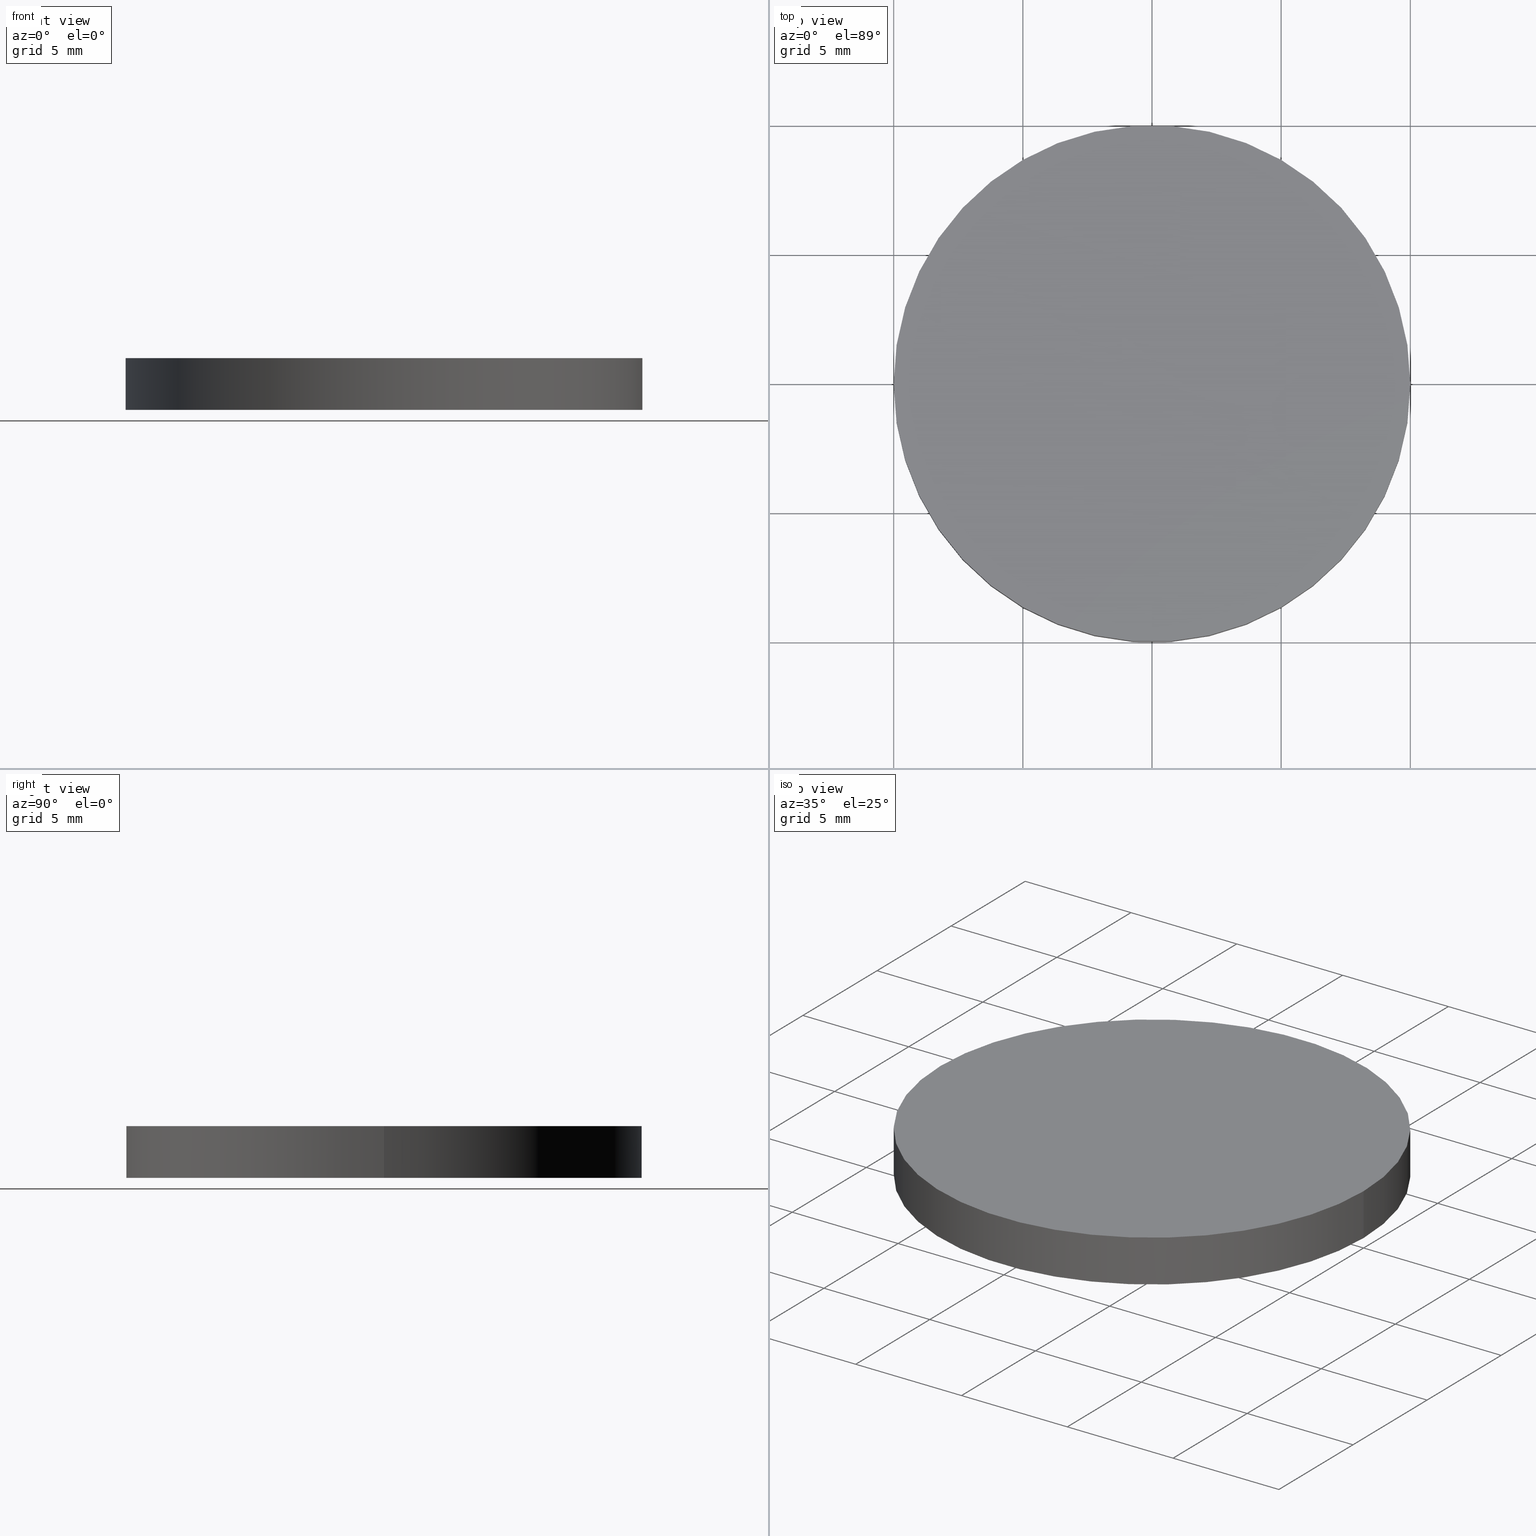
[diagram: canonical four-view strip — front | top / right | iso, engineering-drawing reading convention]
A machine part, canonical four-view strip (front | top / right | iso — engineering-drawing reading convention). The complete STEP part file that produces these views, byte-faithful:
ISO-10303-21;
HEADER;
FILE_DESCRIPTION (( 'STEP AP214' ),
    '1' );
FILE_NAME ('190124.STEP',
    '2019-07-17T03:29:39',
    ( 'user' ),
    ( '΢���й�' ),
    'SwSTEP 2.0',
    'SolidWorks 2016',
    '' );
FILE_SCHEMA (( 'AUTOMOTIVE_DESIGN' ));
ENDSEC;

DATA;
#1 = DIRECTION ( 'NONE',  ( 1.000000000000000000, 0.0000000000000000000, 0.0000000000000000000 ) ) ;
#2 = ORIENTED_EDGE ( 'NONE', *, *, #134, .T. ) ;
#3 = DIRECTION ( 'NONE',  ( 0.0000000000000000000, 0.0000000000000000000, 1.000000000000000000 ) ) ;
#4 = SURFACE_STYLE_FILL_AREA ( #89 ) ;
#5 = CARTESIAN_POINT ( 'NONE',  ( 0.0000000000000000000, 0.0000000000000000000, 2.000000000000000000 ) ) ;
#6 = COLOUR_RGB ( '',1.000000000000000000, 1.000000000000000000, 1.000000000000000000 ) ;
#7 = CIRCLE ( 'NONE', #31, 10.00000000000000000 ) ;
#8 = CARTESIAN_POINT ( 'NONE',  ( 10.00000000000000000, 1.224646799147353300E-015, 0.0000000000000000000 ) ) ;
#9 = CYLINDRICAL_SURFACE ( 'NONE', #99, 10.00000000000000000 ) ;
#10 =( GEOMETRIC_REPRESENTATION_CONTEXT ( 3 ) GLOBAL_UNCERTAINTY_ASSIGNED_CONTEXT ( ( #73 ) ) GLOBAL_UNIT_ASSIGNED_CONTEXT ( ( #116, #119, #120 ) ) REPRESENTATION_CONTEXT ( 'NONE', 'WORKASPACE' ) );
#11 = LINE ( 'NONE', #81, #19 ) ;
#12 = ORIENTED_EDGE ( 'NONE', *, *, #51, .T. ) ;
#13 = DIRECTION ( 'NONE',  ( -1.000000000000000000, 0.0000000000000000000, 0.0000000000000000000 ) ) ;
#14 =( NAMED_UNIT ( * ) PLANE_ANGLE_UNIT ( ) SI_UNIT ( $, .RADIAN. ) );
#15 = AXIS2_PLACEMENT_3D ( 'NONE', #33, #39, #40 ) ;
#16 = FACE_OUTER_BOUND ( 'NONE', #79, .T. ) ;
#17 = VERTEX_POINT ( 'NONE', #77 ) ;
#18 = AXIS2_PLACEMENT_3D ( 'NONE', #63, #106, #124 ) ;
#19 = VECTOR ( 'NONE', #122, 1000.000000000000000 ) ;
#20 = DIRECTION ( 'NONE',  ( 0.0000000000000000000, 0.0000000000000000000, 1.000000000000000000 ) ) ;
#21 = CARTESIAN_POINT ( 'NONE',  ( -10.00000000000000000, 0.0000000000000000000, 2.000000000000000000 ) ) ;
#22 = ORIENTED_EDGE ( 'NONE', *, *, #101, .T. ) ;
#23 =( GEOMETRIC_REPRESENTATION_CONTEXT ( 3 ) GLOBAL_UNCERTAINTY_ASSIGNED_CONTEXT ( ( #37 ) ) GLOBAL_UNIT_ASSIGNED_CONTEXT ( ( #97, #107, #108 ) ) REPRESENTATION_CONTEXT ( 'NONE', 'WORKASPACE' ) );
#24 = CIRCLE ( 'NONE', #131, 10.00000000000000000 ) ;
#25 = DIRECTION ( 'NONE',  ( 0.0000000000000000000, 0.0000000000000000000, 1.000000000000000000 ) ) ;
#26 = STYLED_ITEM ( 'NONE', ( #136 ), #132 ) ;
#27 = DIRECTION ( 'NONE',  ( 1.000000000000000000, 0.0000000000000000000, 0.0000000000000000000 ) ) ;
#28 = CARTESIAN_POINT ( 'NONE',  ( 10.00000000000000000, 1.224646799147353300E-015, 2.000000000000000000 ) ) ;
#29 = ADVANCED_FACE ( 'NONE', ( #117 ), #9, .T. ) ;
#30 = MANIFOLD_SOLID_BREP ( '͹̨-����1', #75 ) ;
#31 = AXIS2_PLACEMENT_3D ( 'NONE', #45, #25, #27 ) ;
#32 = CARTESIAN_POINT ( 'NONE',  ( 0.0000000000000000000, 0.0000000000000000000, 2.000000000000000000 ) ) ;
#33 = CARTESIAN_POINT ( 'NONE',  ( 0.0000000000000000000, 0.0000000000000000000, 0.0000000000000000000 ) ) ;
#34 = PRODUCT_CONTEXT ( 'NONE', #110, 'mechanical' ) ;
#35 = ORIENTED_EDGE ( 'NONE', *, *, #51, .F. ) ;
#36 = AXIS2_PLACEMENT_3D ( 'NONE', #87, #60, #93 ) ;
#37 = UNCERTAINTY_MEASURE_WITH_UNIT (LENGTH_MEASURE( 1.000000000000000100E-005 ), #97, 'distance_accuracy_value', 'NONE');
#38 = VECTOR ( 'NONE', #74, 1000.000000000000000 ) ;
#39 = DIRECTION ( 'NONE',  ( 0.0000000000000000000, 0.0000000000000000000, 1.000000000000000000 ) ) ;
#40 = DIRECTION ( 'NONE',  ( 1.000000000000000000, 0.0000000000000000000, 0.0000000000000000000 ) ) ;
#41 = ORIENTED_EDGE ( 'NONE', *, *, #101, .F. ) ;
#42 = EDGE_CURVE ( 'NONE', #102, #17, #11, .T. ) ;
#43 = PRODUCT_DEFINITION_CONTEXT ( 'detailed design', #125, 'design' ) ;
#44 = EDGE_CURVE ( 'NONE', #102, #109, #7, .T. ) ;
#45 = CARTESIAN_POINT ( 'NONE',  ( 0.0000000000000000000, 0.0000000000000000000, 2.000000000000000000 ) ) ;
#46 = VERTEX_POINT ( 'NONE', #8 ) ;
#47 = PRODUCT_DEFINITION_SHAPE ( 'NONE', 'NONE',  #52 ) ;
#48 = CARTESIAN_POINT ( 'NONE',  ( 0.0000000000000000000, 0.0000000000000000000, 0.0000000000000000000 ) ) ;
#49 = CIRCLE ( 'NONE', #15, 10.00000000000000000 ) ;
#50 = DIRECTION ( 'NONE',  ( 0.0000000000000000000, 0.0000000000000000000, 1.000000000000000000 ) ) ;
#51 = EDGE_CURVE ( 'NONE', #46, #17, #49, .T. ) ;
#52 = PRODUCT_DEFINITION ( 'δ֪', '', #62, #43 ) ;
#53 = FACE_OUTER_BOUND ( 'NONE', #90, .T. ) ;
#54 = MECHANICAL_DESIGN_GEOMETRIC_PRESENTATION_REPRESENTATION (  '', ( #78 ), #23 ) ;
#55 = DIRECTION ( 'NONE',  ( 1.000000000000000000, 0.0000000000000000000, -0.0000000000000000000 ) ) ;
#56 = PLANE ( 'NONE',  #18 ) ;
#57 = PRESENTATION_LAYER_ASSIGNMENT (  '', '', ( #26 ) ) ;
#58 = SURFACE_STYLE_USAGE ( .BOTH. , #69 ) ;
#59 = ORIENTED_EDGE ( 'NONE', *, *, #123, .F. ) ;
#60 = DIRECTION ( 'NONE',  ( -0.0000000000000000000, -0.0000000000000000000, -1.000000000000000000 ) ) ;
#61 = UNCERTAINTY_MEASURE_WITH_UNIT (LENGTH_MEASURE( 1.000000000000000100E-005 ), #88, 'distance_accuracy_value', 'NONE');
#62 = PRODUCT_DEFINITION_FORMATION_WITH_SPECIFIED_SOURCE ( '�κ�', '', #103, .NOT_KNOWN. ) ;
#63 = CARTESIAN_POINT ( 'NONE',  ( 0.0000000000000000000, 0.0000000000000000000, 0.0000000000000000000 ) ) ;
#64 = EDGE_LOOP ( 'NONE', ( #41, #2, #12, #133 ) ) ;
#65 = PRESENTATION_LAYER_ASSIGNMENT (  '', '', ( #78 ) ) ;
#66 = FACE_OUTER_BOUND ( 'NONE', #138, .T. ) ;
#67 = MECHANICAL_DESIGN_GEOMETRIC_PRESENTATION_REPRESENTATION (  '', ( #26 ), #76 ) ;
#68 = ORIENTED_EDGE ( 'NONE', *, *, #42, .T. ) ;
#69 = SURFACE_SIDE_STYLE ('',( #4 ) ) ;
#70 = PRODUCT_RELATED_PRODUCT_CATEGORY ( 'part', '', ( #103 ) ) ;
#71 = SURFACE_SIDE_STYLE ('',( #121 ) ) ;
#72 = CARTESIAN_POINT ( 'NONE',  ( 10.00000000000000000, 1.224646799147353300E-015, 2.000000000000000000 ) ) ;
#73 = UNCERTAINTY_MEASURE_WITH_UNIT (LENGTH_MEASURE( 1.000000000000000100E-005 ), #116, 'distance_accuracy_value', 'NONE');
#74 = DIRECTION ( 'NONE',  ( -0.0000000000000000000, -0.0000000000000000000, -1.000000000000000000 ) ) ;
#75 = CLOSED_SHELL ( 'NONE', ( #29, #135, #105, #127 ) ) ;
#76 =( GEOMETRIC_REPRESENTATION_CONTEXT ( 3 ) GLOBAL_UNCERTAINTY_ASSIGNED_CONTEXT ( ( #61 ) ) GLOBAL_UNIT_ASSIGNED_CONTEXT ( ( #88, #14, #139 ) ) REPRESENTATION_CONTEXT ( 'NONE', 'WORKASPACE' ) );
#77 = CARTESIAN_POINT ( 'NONE',  ( -10.00000000000000000, 0.0000000000000000000, 0.0000000000000000000 ) ) ;
#78 = STYLED_ITEM ( 'NONE', ( #140 ), #30 ) ;
#79 = EDGE_LOOP ( 'NONE', ( #85, #22 ) ) ;
#80 = DIRECTION ( 'NONE',  ( -0.0000000000000000000, -0.0000000000000000000, -1.000000000000000000 ) ) ;
#81 = CARTESIAN_POINT ( 'NONE',  ( -10.00000000000000000, 0.0000000000000000000, 2.000000000000000000 ) ) ;
#82 = APPLICATION_PROTOCOL_DEFINITION ( 'draft international standard', 'automotive_design', 1998, #110 ) ;
#83 = CIRCLE ( 'NONE', #114, 10.00000000000000000 ) ;
#84 = DIRECTION ( 'NONE',  ( 1.000000000000000000, 0.0000000000000000000, 0.0000000000000000000 ) ) ;
#85 = ORIENTED_EDGE ( 'NONE', *, *, #44, .T. ) ;
#86 = CYLINDRICAL_SURFACE ( 'NONE', #36, 10.00000000000000000 ) ;
#87 = CARTESIAN_POINT ( 'NONE',  ( 0.0000000000000000000, 0.0000000000000000000, 2.000000000000000000 ) ) ;
#88 =( LENGTH_UNIT ( ) NAMED_UNIT ( * ) SI_UNIT ( .MILLI., .METRE. ) );
#89 = FILL_AREA_STYLE ('',( #95 ) ) ;
#90 = EDGE_LOOP ( 'NONE', ( #59, #35 ) ) ;
#91 = SHAPE_DEFINITION_REPRESENTATION ( #47, #132 ) ;
#92 = AXIS2_PLACEMENT_3D ( 'NONE', #94, #20, #84 ) ;
#93 = DIRECTION ( 'NONE',  ( -1.000000000000000000, 0.0000000000000000000, 0.0000000000000000000 ) ) ;
#94 = CARTESIAN_POINT ( 'NONE',  ( 0.0000000000000000000, 0.0000000000000000000, 0.0000000000000000000 ) ) ;
#95 = FILL_AREA_STYLE_COLOUR ( '', #104 ) ;
#96 = LINE ( 'NONE', #72, #38 ) ;
#97 =( LENGTH_UNIT ( ) NAMED_UNIT ( * ) SI_UNIT ( .MILLI., .METRE. ) );
#98 = CARTESIAN_POINT ( 'NONE',  ( 0.0000000000000000000, 0.0000000000000000000, 2.000000000000000000 ) ) ;
#99 = AXIS2_PLACEMENT_3D ( 'NONE', #98, #80, #13 ) ;
#100 = FILL_AREA_STYLE_COLOUR ( '', #6 ) ;
#101 = EDGE_CURVE ( 'NONE', #109, #102, #83, .T. ) ;
#102 = VERTEX_POINT ( 'NONE', #21 ) ;
#103 = PRODUCT ( '190124', '190124', '', ( #34 ) ) ;
#104 = COLOUR_RGB ( '',1.000000000000000000, 1.000000000000000000, 1.000000000000000000 ) ;
#105 = ADVANCED_FACE ( 'NONE', ( #16 ), #112, .T. ) ;
#106 = DIRECTION ( 'NONE',  ( 0.0000000000000000000, 0.0000000000000000000, 1.000000000000000000 ) ) ;
#107 =( NAMED_UNIT ( * ) PLANE_ANGLE_UNIT ( ) SI_UNIT ( $, .RADIAN. ) );
#108 =( NAMED_UNIT ( * ) SI_UNIT ( $, .STERADIAN. ) SOLID_ANGLE_UNIT ( ) );
#109 = VERTEX_POINT ( 'NONE', #28 ) ;
#110 = APPLICATION_CONTEXT ( 'automotive_design' ) ;
#111 = DIRECTION ( 'NONE',  ( 0.0000000000000000000, 0.0000000000000000000, 1.000000000000000000 ) ) ;
#112 = PLANE ( 'NONE',  #137 ) ;
#113 = DIRECTION ( 'NONE',  ( 1.000000000000000000, 0.0000000000000000000, 0.0000000000000000000 ) ) ;
#114 = AXIS2_PLACEMENT_3D ( 'NONE', #5, #3, #1 ) ;
#115 = ORIENTED_EDGE ( 'NONE', *, *, #123, .T. ) ;
#116 =( LENGTH_UNIT ( ) NAMED_UNIT ( * ) SI_UNIT ( .MILLI., .METRE. ) );
#117 = FACE_OUTER_BOUND ( 'NONE', #64, .T. ) ;
#118 = APPLICATION_PROTOCOL_DEFINITION ( 'draft international standard', 'automotive_design', 1998, #125 ) ;
#119 =( NAMED_UNIT ( * ) PLANE_ANGLE_UNIT ( ) SI_UNIT ( $, .RADIAN. ) );
#120 =( NAMED_UNIT ( * ) SI_UNIT ( $, .STERADIAN. ) SOLID_ANGLE_UNIT ( ) );
#121 = SURFACE_STYLE_FILL_AREA ( #126 ) ;
#122 = DIRECTION ( 'NONE',  ( -0.0000000000000000000, -0.0000000000000000000, -1.000000000000000000 ) ) ;
#123 = EDGE_CURVE ( 'NONE', #17, #46, #24, .T. ) ;
#124 = DIRECTION ( 'NONE',  ( 1.000000000000000000, 0.0000000000000000000, -0.0000000000000000000 ) ) ;
#125 = APPLICATION_CONTEXT ( 'automotive_design' ) ;
#126 = FILL_AREA_STYLE ('',( #100 ) ) ;
#127 = ADVANCED_FACE ( 'NONE', ( #53 ), #56, .F. ) ;
#128 = ORIENTED_EDGE ( 'NONE', *, *, #44, .F. ) ;
#129 = SURFACE_STYLE_USAGE ( .BOTH. , #71 ) ;
#130 = ORIENTED_EDGE ( 'NONE', *, *, #134, .F. ) ;
#131 = AXIS2_PLACEMENT_3D ( 'NONE', #48, #111, #113 ) ;
#132 = ADVANCED_BREP_SHAPE_REPRESENTATION ( '190124', ( #30, #92 ), #10 ) ;
#133 = ORIENTED_EDGE ( 'NONE', *, *, #42, .F. ) ;
#134 = EDGE_CURVE ( 'NONE', #109, #46, #96, .T. ) ;
#135 = ADVANCED_FACE ( 'NONE', ( #66 ), #86, .T. ) ;
#136 = PRESENTATION_STYLE_ASSIGNMENT (( #58 ) ) ;
#137 = AXIS2_PLACEMENT_3D ( 'NONE', #32, #50, #55 ) ;
#138 = EDGE_LOOP ( 'NONE', ( #130, #128, #68, #115 ) ) ;
#139 =( NAMED_UNIT ( * ) SI_UNIT ( $, .STERADIAN. ) SOLID_ANGLE_UNIT ( ) );
#140 = PRESENTATION_STYLE_ASSIGNMENT (( #129 ) ) ;
ENDSEC;
END-ISO-10303-21;
